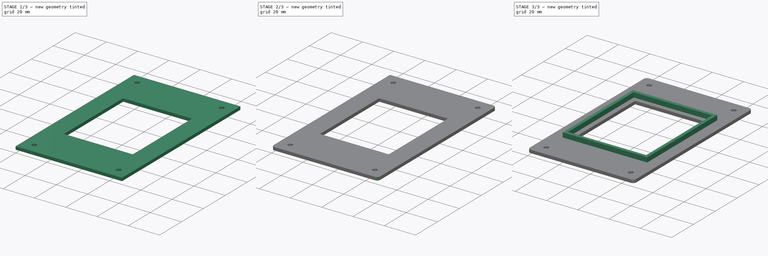
[diagram: build sequence overview — one tinted view per stage of 3, left to right]
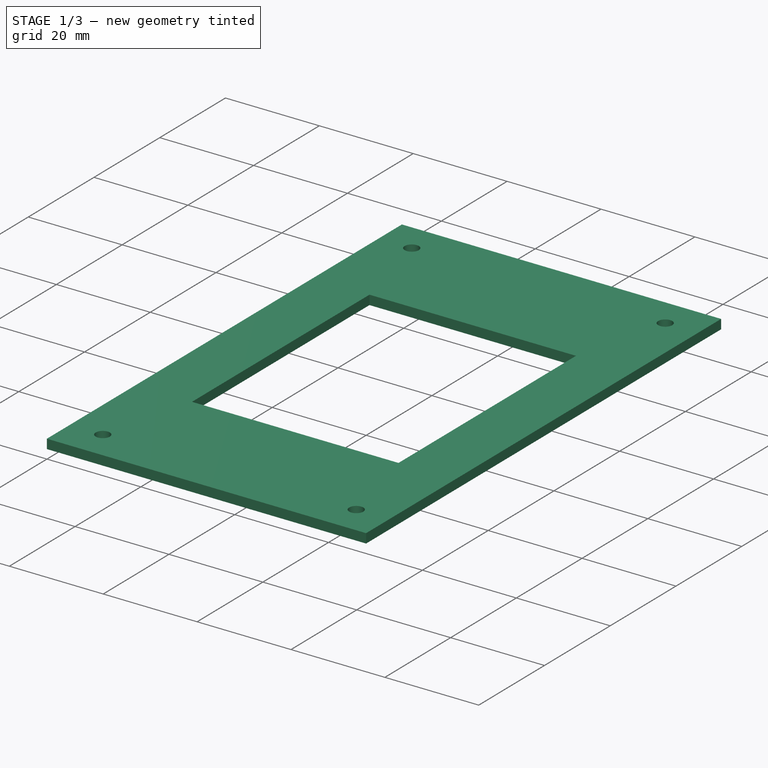
[diagram: stage 1 of 3 — iso view after this stage's code; geometry added in this stage tinted green]
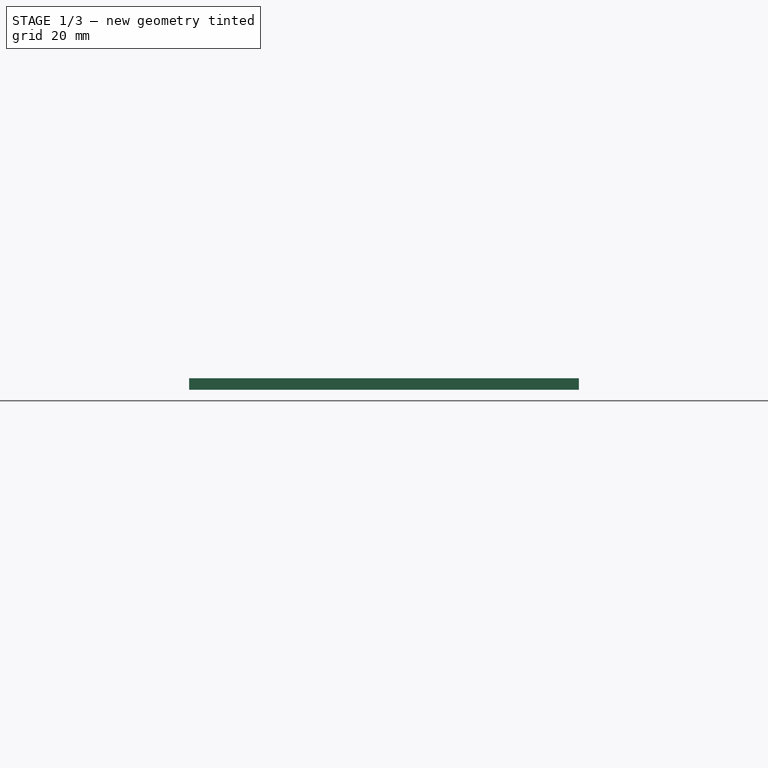
[diagram: stage 1 of 3 — front view after this stage's code; geometry added in this stage tinted green]
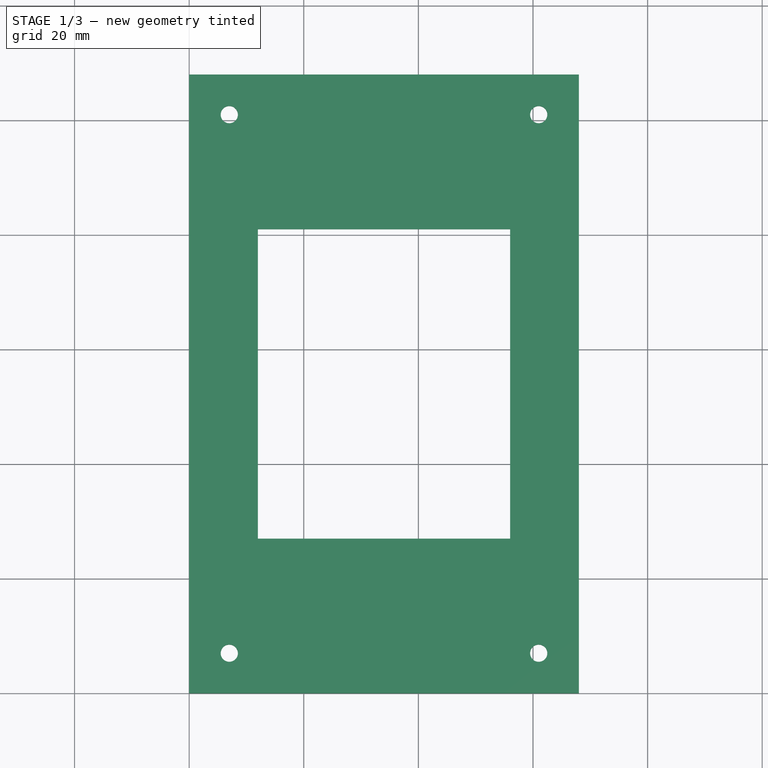
[diagram: stage 1 of 3 — top view after this stage's code; geometry added in this stage tinted green]
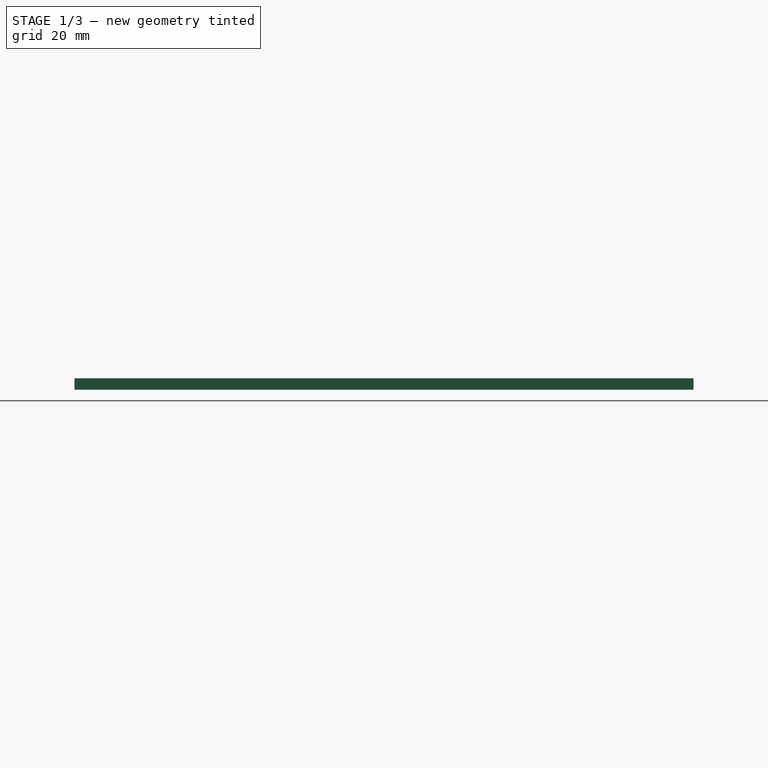
[diagram: stage 1 of 3 — right view after this stage's code; geometry added in this stage tinted green]
FCSTD DOCUMENT  (FreeCAD 0.16R6706 (Git))
Label: iROB-EA_Modulo_Meteorologia_Tapa
License: All rights reserved
LicenseURL: http://en.wikipedia.org/wiki/All_rights_reserved
objects: PartDesign::Fillet×4, Sketcher::SketchObject×3, PartDesign::Pad×2, PartDesign::Pocket×1
note: 13 computed .brp shape members not serialized (recipe doc carries the construction recipe); baked Part::Feature solids carry a one-line shape summary decoded from their .brp

FEATURE [Sketcher::SketchObject] Sketch  label="Base"
  sketch-geometry (4):
    g0: LineSegment StartX=0 StartY=108 StartZ=0 EndX=68 EndY=108 EndZ=0
    g1: LineSegment StartX=68 StartY=108 StartZ=0 EndX=68 EndY=0 EndZ=0
    g2: LineSegment StartX=68 StartY=0 StartZ=0 EndX=0 EndY=0 EndZ=0
    g3: LineSegment StartX=0 StartY=0 StartZ=0 EndX=0 EndY=108 EndZ=0
  constraints (11):
    c: Coincident(g0,g1)
    c: Coincident(g1,g2)
    c: Coincident(g2,g3)
    c: Coincident(g3,g0)
    c: Horizontal(g0)
    c: Horizontal(g2)
    c: Vertical(g1)
    c: Vertical(g3)
    c: DistanceX(g0,g0) = 68
    c: DistanceY(g3,g3) = 108
    c: Coincident(g2,g-1)
FEATURE [PartDesign::Pad] Pad
  Length = 2
  Length2 = 100
  Sketch = -> Sketch
  Type = 0
FEATURE [Sketcher::SketchObject] Sketch001  label="Tornillos_Ventana"
  Placement = pos=(0,0,2) rot=(0,0,1;0rad)
  Support = -> Pad [Face6]
  sketch-geometry (8):
    g0: LineSegment StartX=12 StartY=81 StartZ=0 EndX=56 EndY=81 EndZ=0
    g1: LineSegment StartX=56 StartY=81 StartZ=0 EndX=56 EndY=27 EndZ=0
    g2: LineSegment StartX=56 StartY=27 StartZ=0 EndX=12 EndY=27 EndZ=0
    g3: LineSegment StartX=12 StartY=27 StartZ=0 EndX=12 EndY=81 EndZ=0
    g4: Circle CenterX=7 CenterY=7 CenterZ=0 NormalX=0 NormalY=0 NormalZ=1 Radius=1.5
    g5: Circle CenterX=61 CenterY=7 CenterZ=0 NormalX=0 NormalY=0 NormalZ=1 Radius=1.5
    g6: Circle CenterX=7 CenterY=101 CenterZ=0 NormalX=0 NormalY=0 NormalZ=1 Radius=1.5
    g7: Circle CenterX=61 CenterY=101 CenterZ=0 NormalX=0 NormalY=0 NormalZ=1 Radius=1.5
  constraints (24):
    c: Coincident(g0,g1)
    c: Coincident(g1,g2)
    c: Coincident(g2,g3)
    c: Coincident(g3,g0)
    c: Horizontal(g0)
    c: Horizontal(g2)
    c: Vertical(g1)
    c: Vertical(g3)
    c: DistanceX(g0,g0) = 44
    c: DistanceY(g3,g3) = 54
    c: DistanceX(g2,g-1) = -12
    c: DistanceY(g-1,g2) = 27
    c: Radius(g4) = 1.5
    c: DistanceX(g4,g-1) = -7
    c: DistanceY(g-1,g4) = 7
    c: Radius(g5) = 1.5
    c: DistanceX(g5,g4) = -54
    c: DistanceY(g4,g5) = 0
    c: Radius(g6) = 1.5
    c: DistanceY(g4,g6) = 94
    c: DistanceX(g6,g4) = 0
    c: Radius(g7) = 1.5
    c: DistanceX(g7,g6) = -54
    c: DistanceY(g7,g6) = 0
FEATURE [PartDesign::Pocket] Pocket
  Length = 3
  Sketch = -> Sketch001
  Type = 0
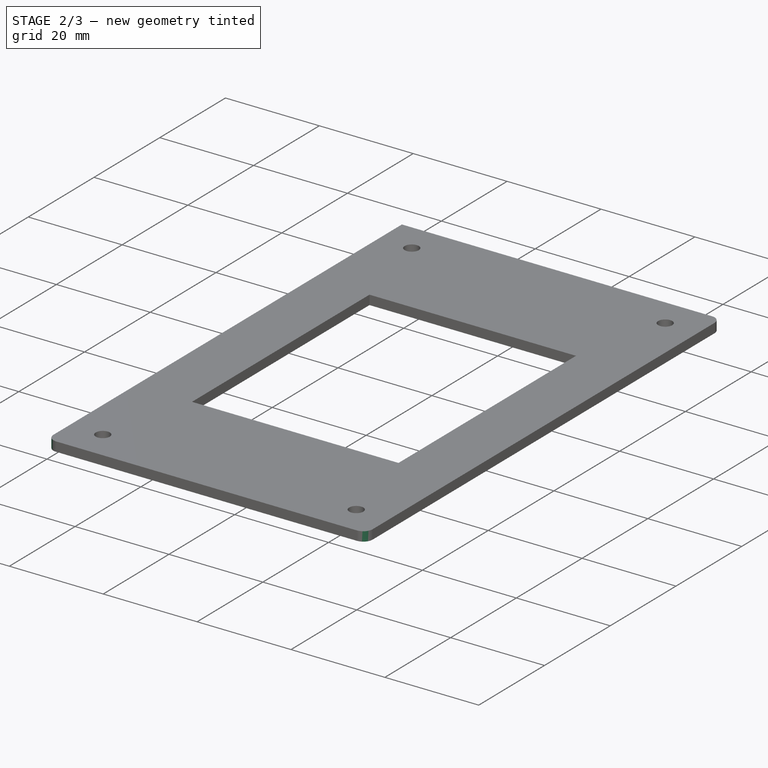
[diagram: stage 2 of 3 — iso view after this stage's code; geometry added in this stage tinted green]
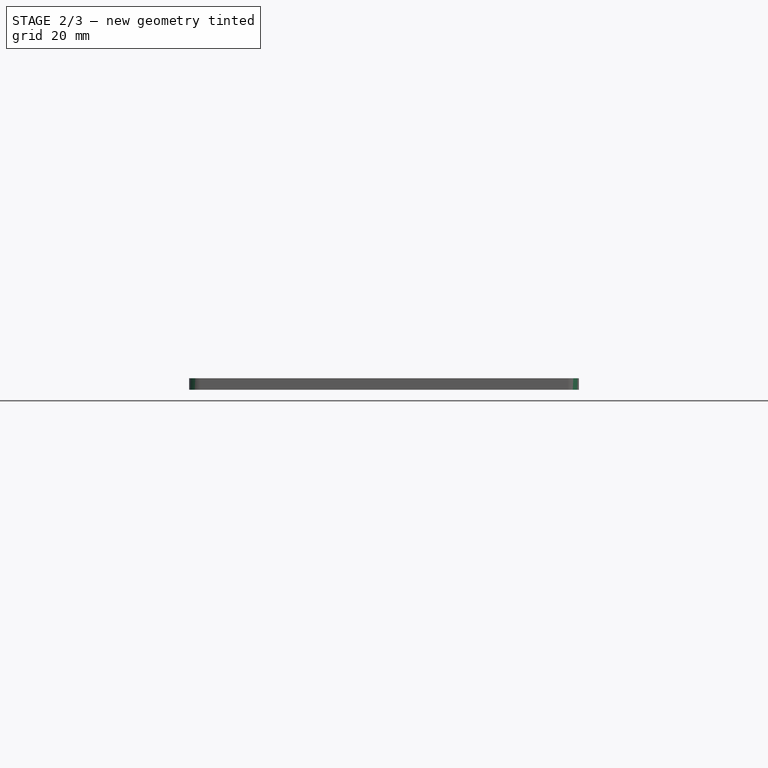
[diagram: stage 2 of 3 — front view after this stage's code; geometry added in this stage tinted green]
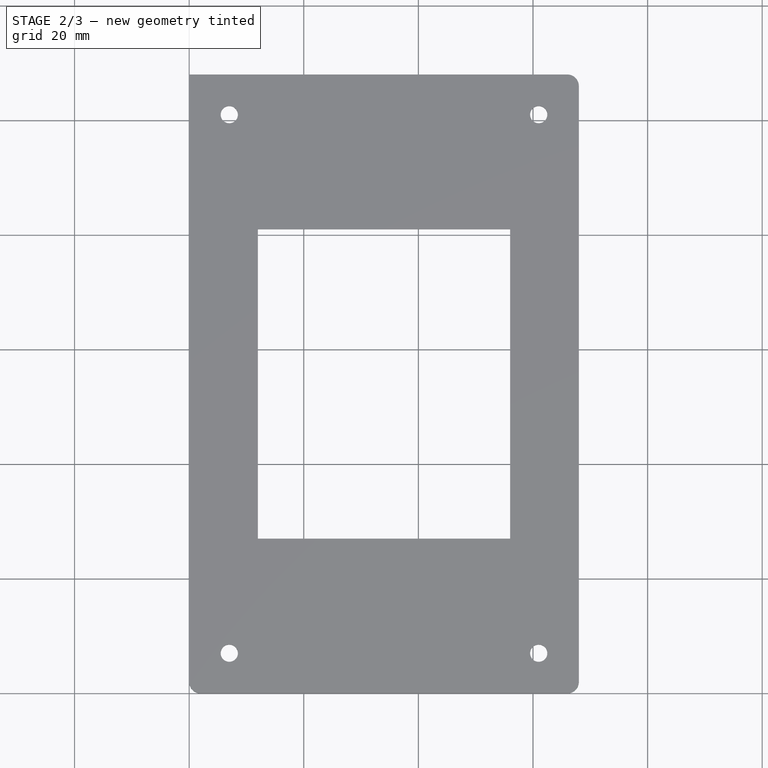
[diagram: stage 2 of 3 — top view after this stage's code; geometry added in this stage tinted green]
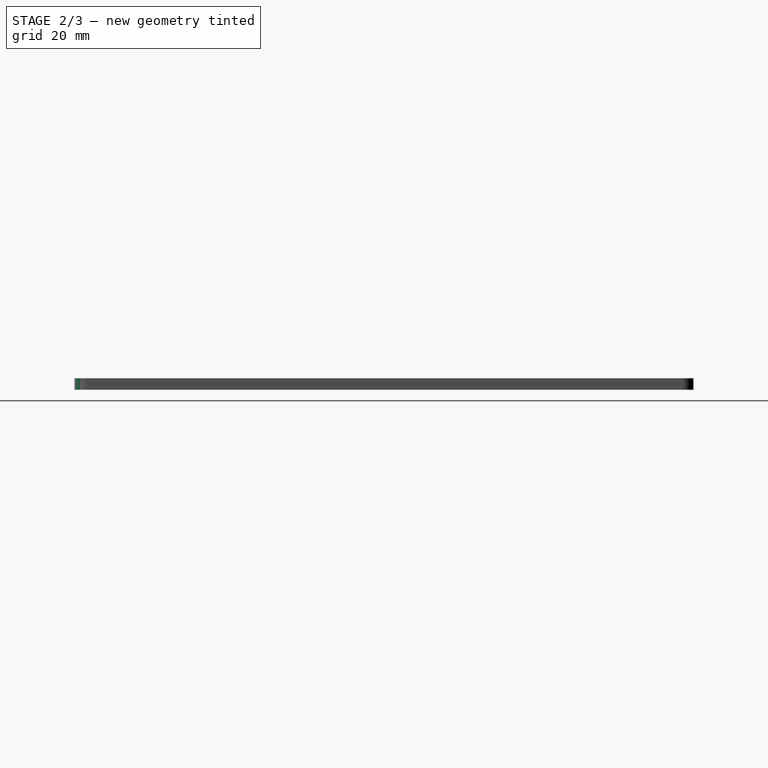
[diagram: stage 2 of 3 — right view after this stage's code; geometry added in this stage tinted green]
FEATURE [PartDesign::Fillet] Fillet
  Base = -> Pocket [Edge5]
  Radius = 2
FEATURE [PartDesign::Fillet] Fillet001
  Base = -> Fillet [Edge31]
  Radius = 2
FEATURE [PartDesign::Fillet] Fillet002
  Base = -> Fillet001 [Edge22]
  Radius = 2
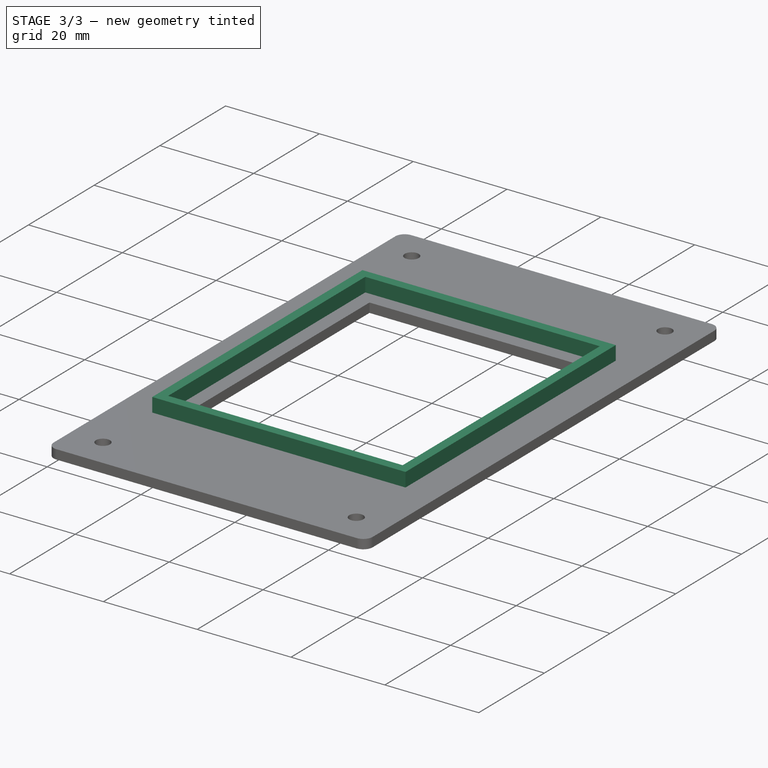
[diagram: stage 3 of 3 — iso view after this stage's code; geometry added in this stage tinted green]
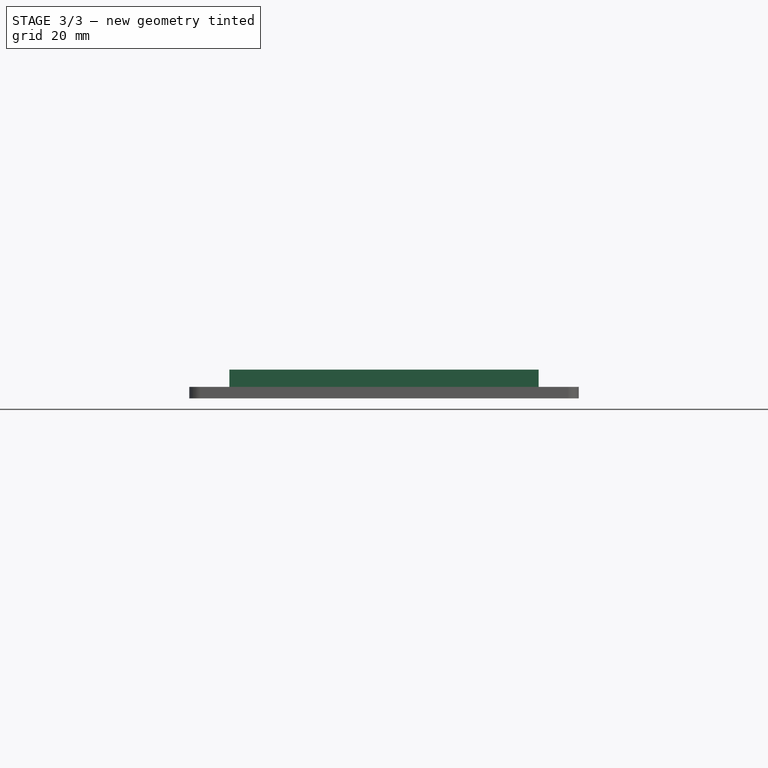
[diagram: stage 3 of 3 — front view after this stage's code; geometry added in this stage tinted green]
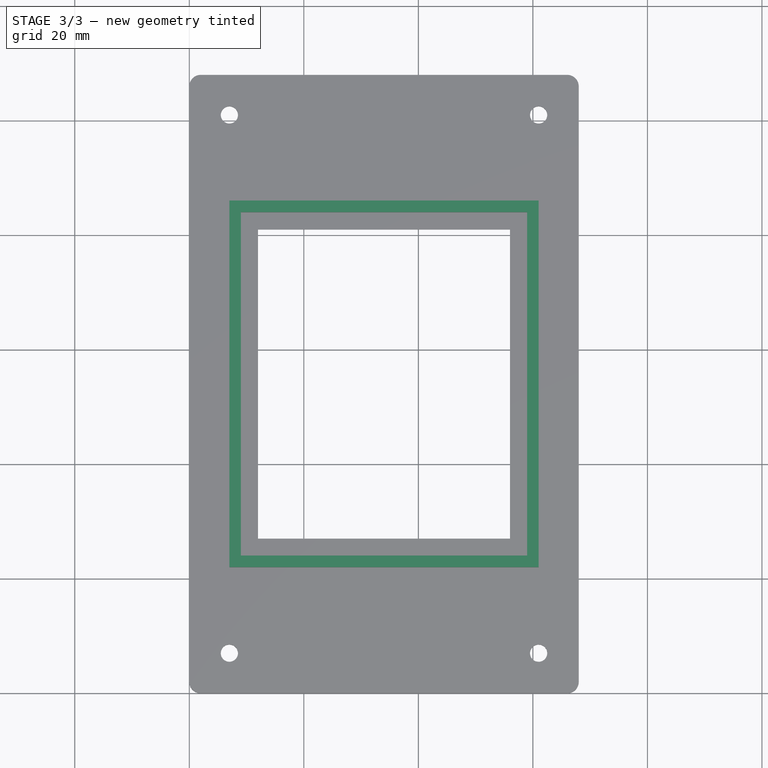
[diagram: stage 3 of 3 — top view after this stage's code; geometry added in this stage tinted green]
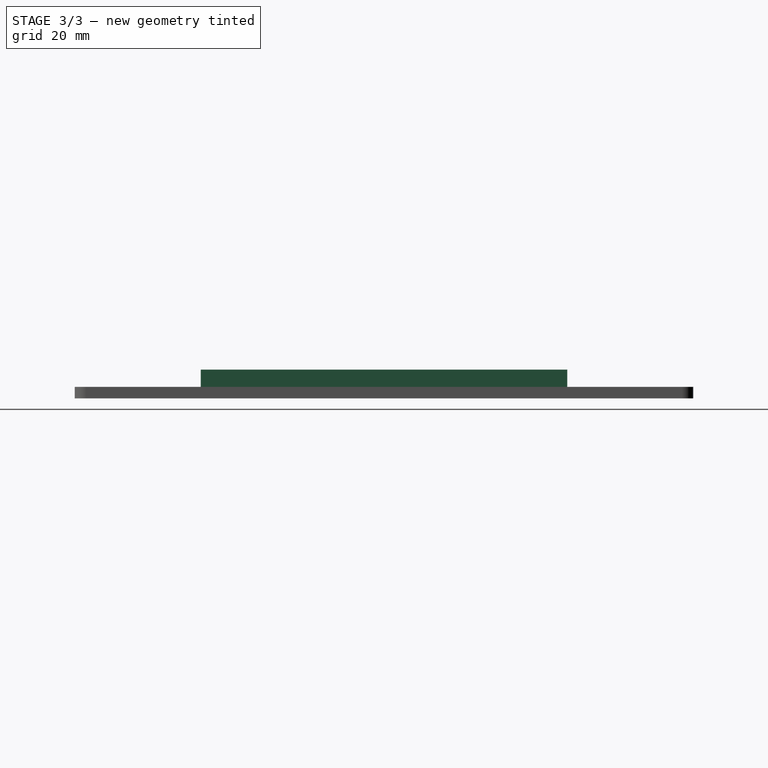
[diagram: stage 3 of 3 — right view after this stage's code; geometry added in this stage tinted green]
FEATURE [PartDesign::Fillet] Fillet003
  Base = -> Fillet002 [Edge23]
  Radius = 2
FEATURE [Sketcher::SketchObject] Sketch002  label="Marco_Ventana"
  Placement = pos=(0,0,2) rot=(0,0,1;0rad)
  Support = -> Fillet003 [Face18]
  sketch-geometry (8):
    g0: LineSegment StartX=9 StartY=84 StartZ=0 EndX=59 EndY=84 EndZ=0
    g1: LineSegment StartX=59 StartY=84 StartZ=0 EndX=59 EndY=24 EndZ=0
    g2: LineSegment StartX=59 StartY=24 StartZ=0 EndX=9 EndY=24 EndZ=0
    g3: LineSegment StartX=9 StartY=24 StartZ=0 EndX=9 EndY=84 EndZ=0
    g4: LineSegment StartX=7 StartY=86 StartZ=0 EndX=61 EndY=86 EndZ=0
    g5: LineSegment StartX=61 StartY=86 StartZ=0 EndX=61 EndY=22 EndZ=0
    g6: LineSegment StartX=61 StartY=22 StartZ=0 EndX=7 EndY=22 EndZ=0
    g7: LineSegment StartX=7 StartY=22 StartZ=0 EndX=7 EndY=86 EndZ=0
  constraints (24):
    c: Coincident(g0,g1)
    c: Coincident(g1,g2)
    c: Coincident(g2,g3)
    c: Coincident(g3,g0)
    c: Horizontal(g0)
    c: Horizontal(g2)
    c: Vertical(g1)
    c: Vertical(g3)
    c: DistanceX(g0,g0) = 50
    c: DistanceY(g3,g3) = 60
    c: DistanceY(g-1,g2) = 24
    c: DistanceX(g2,g-1) = -9
    c: Coincident(g4,g5)
    c: Coincident(g5,g6)
    c: Coincident(g6,g7)
    c: Coincident(g7,g4)
    c: Horizontal(g4)
    c: Horizontal(g6)
    c: Vertical(g5)
    c: Vertical(g7)
    c: DistanceY(g7,g7) = 64
    c: DistanceX(g4,g4) = 54
    c: DistanceY(g2,g6) = -2
    c: DistanceX(g6,g2) = 2
FEATURE [PartDesign::Pad] Pad001
  Length = 3
  Length2 = 100
  Sketch = -> Sketch002
  Type = 0
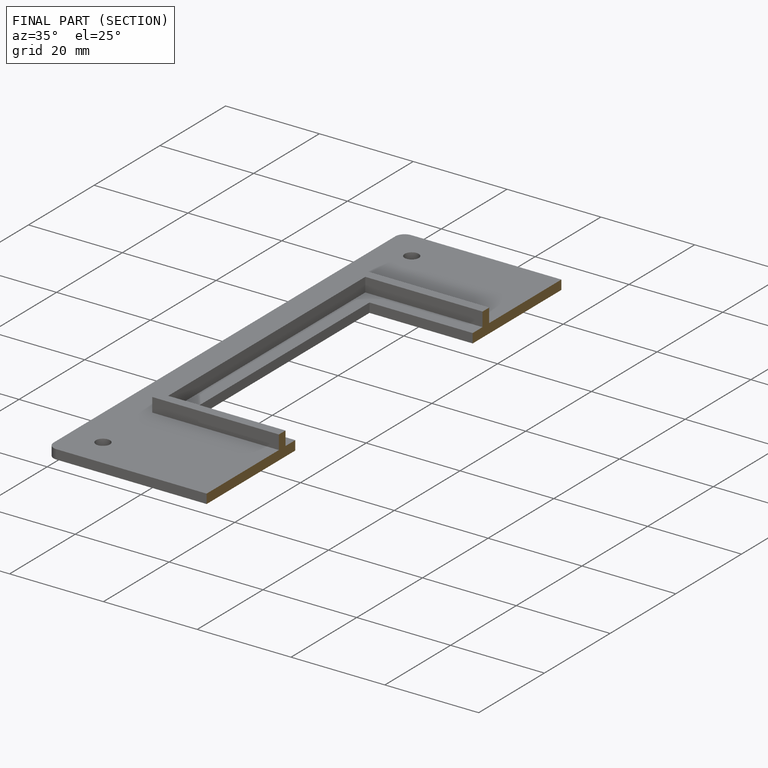
[diagram: finished part — half-section view (interior)]
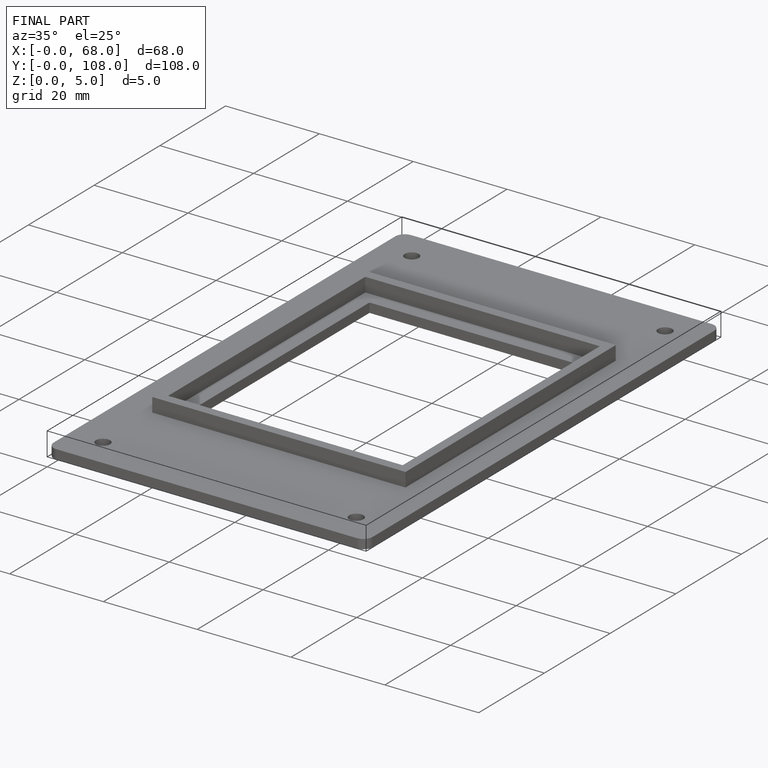
[diagram: finished part — iso view with bounding-box wireframe]
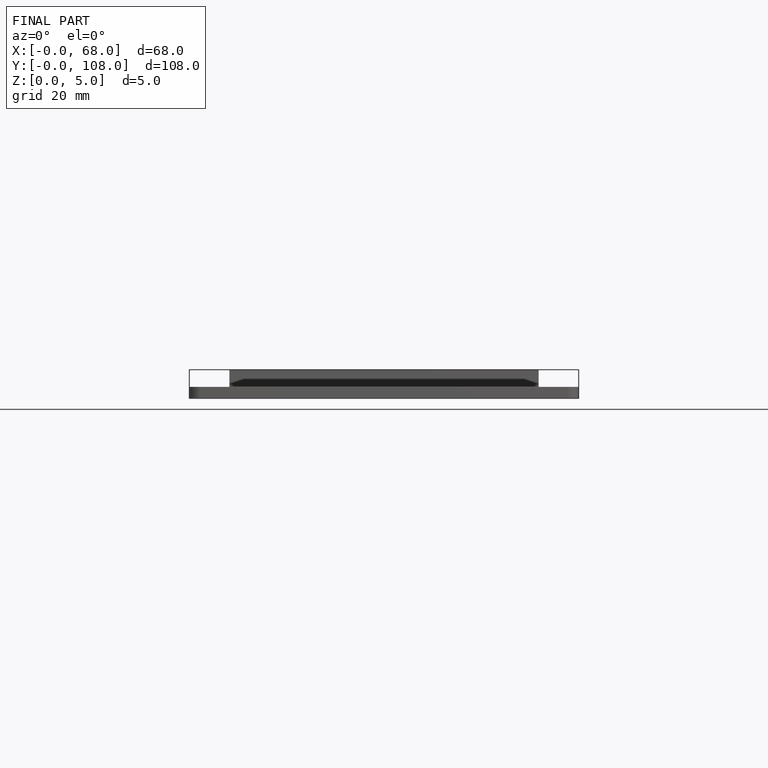
[diagram: finished part — front view with bounding-box wireframe]
